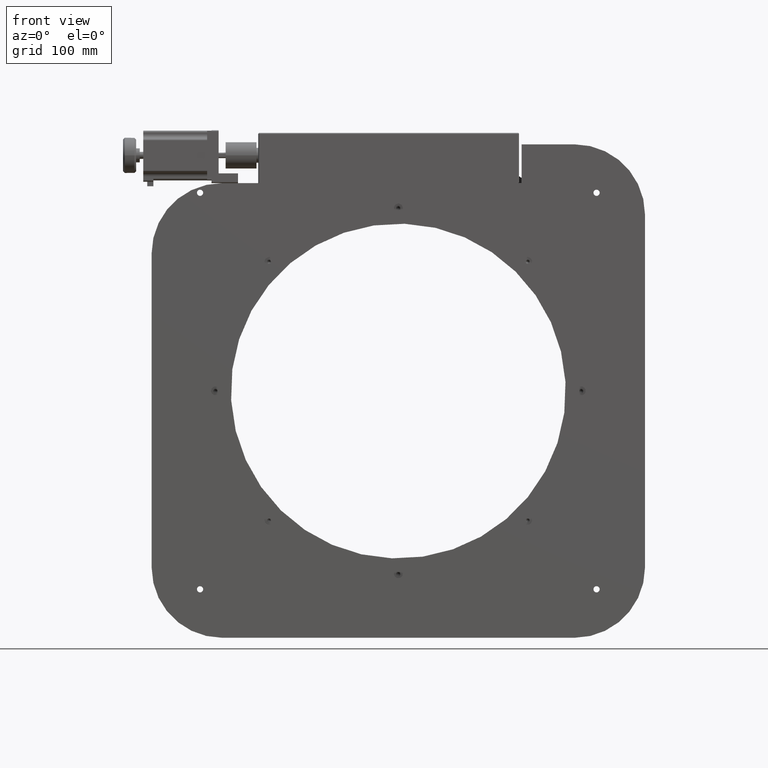
[diagram: clean part render]
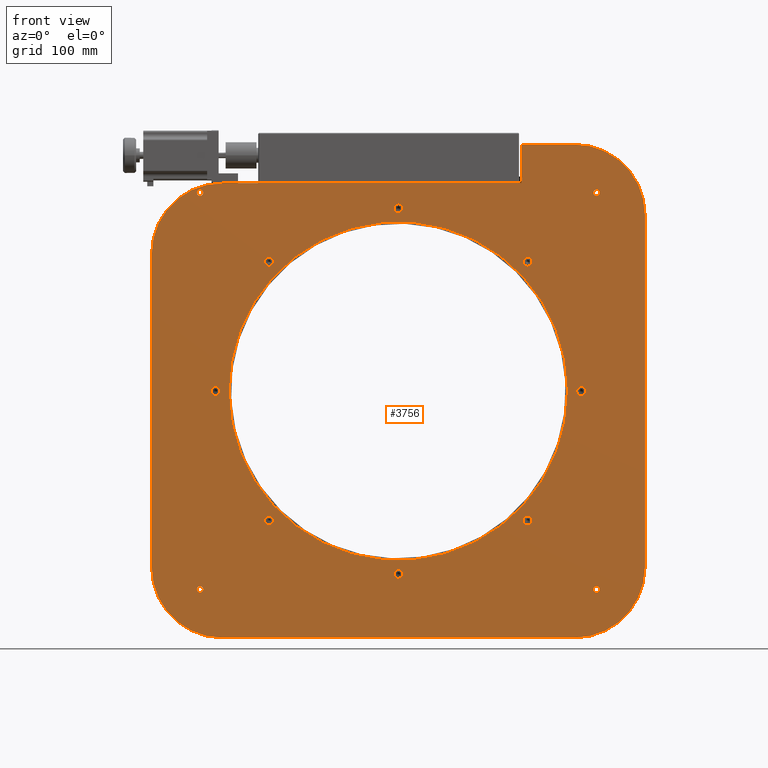
[diagram: same view with one face highlighted and labeled with its STEP entity id]
A machine part, front view. The second image highlights one B-rep face of the part: STEP entity #3756.
In plain terms, the highlighted planar face has unit normal (0, 1, -0).
Its self-contained STEP definition (entity closure, byte-faithful):
#53 = EDGE_CURVE ( 'NONE', #1139, #5576, #6133, .T. ) ;
#104 = CARTESIAN_POINT ( 'NONE',  ( -41.99999999999990100, -1.665334536937734800E-012, -492.0000000000000600 ) ) ;
#106 = EDGE_CURVE ( 'NONE', #591, #10550, #4889, .T. ) ;
#108 = EDGE_CURVE ( 'NONE', #21794, #10072, #24495, .T. ) ;
#247 = VERTEX_POINT ( 'NONE', #11172 ) ;
#288 = CIRCLE ( 'NONE', #16082, 3.500000000000003100 ) ;
#425 = LINE ( 'NONE', #27430, #15536 ) ;
#440 = DIRECTION ( 'NONE',  ( 1.000000000000000000, 0.0000000000000000000, 0.0000000000000000000 ) ) ;
#509 = AXIS2_PLACEMENT_3D ( 'NONE', #104, #18300, #18415 ) ;
#591 = VERTEX_POINT ( 'NONE', #14695 ) ;
#681 = CIRCLE ( 'NONE', #17215, 3.500000000000003100 ) ;
#723 = FACE_BOUND ( 'NONE', #33263, .T. ) ;
#772 = EDGE_LOOP ( 'NONE', ( #13662, #25233 ) ) ;
#818 = EDGE_CURVE ( 'NONE', #24034, #20675, #30837, .T. ) ;
#840 = CARTESIAN_POINT ( 'NONE',  ( 6.275342903791253600, -1.554312234475219200E-012, -438.7246570962082000 ) ) ;
#921 = VERTEX_POINT ( 'NONE', #16392 ) ;
#969 = CARTESIAN_POINT ( 'NONE',  ( 329.8239918436432300, -6.661338147750939200E-013, -193.7500000000014500 ) ) ;
#1139 = VERTEX_POINT ( 'NONE', #20578 ) ;
#1252 = DIRECTION ( 'NONE',  ( 0.0000000000000000000, -1.000000000000000000, 3.491481338843133400E-015 ) ) ;
#1292 = DIRECTION ( 'NONE',  ( -0.0000000000000000000, -1.000000000000000000, 3.491481338843133400E-015 ) ) ;
#1372 = CARTESIAN_POINT ( 'NONE',  ( 379.5000000000002300, -2.220446049250314600E-013, -67.00000000000009900 ) ) ;
#1401 = DIRECTION ( 'NONE',  ( 1.000000000000000000, 0.0000000000000000000, 0.0000000000000000000 ) ) ;
#1405 = EDGE_LOOP ( 'NONE', ( #31499, #32519 ) ) ;
#1492 = VERTEX_POINT ( 'NONE', #14072 ) ;
#1531 = AXIS2_PLACEMENT_3D ( 'NONE', #25238, #17166, #7240 ) ;
#1541 = FACE_BOUND ( 'NONE', #6338, .T. ) ;
#1778 = VECTOR ( 'NONE', #16006, 1000.000000000000000 ) ;
#1904 = CIRCLE ( 'NONE', #13433, 5.000000000000004400 ) ;
#1985 = DIRECTION ( 'NONE',  ( 1.000000000000000000, 0.0000000000000000000, 0.0000000000000000000 ) ) ;
#2089 = CARTESIAN_POINT ( 'NONE',  ( 158.0000000000001400, -1.665334536937734800E-012, -488.4999999999998900 ) ) ;
#2128 = CARTESIAN_POINT ( 'NONE',  ( 328.1739918436412000, -1.332267629550187800E-012, -390.2500000000018800 ) ) ;
#2206 = EDGE_LOOP ( 'NONE', ( #11171, #19129 ) ) ;
#2243 = ORIENTED_EDGE ( 'NONE', *, *, #8513, .F. ) ;
#2244 = CIRCLE ( 'NONE', #15232, 3.500000000000003100 ) ;
#2359 = ORIENTED_EDGE ( 'NONE', *, *, #5873, .F. ) ;
#2386 = CARTESIAN_POINT ( 'NONE',  ( 156.3500000000001600, -1.665334536937735000E-012, -488.4999999999999400 ) ) ;
#2550 = DIRECTION ( 'NONE',  ( -0.0000000000000000000, -1.000000000000000000, 3.491481338843133400E-015 ) ) ;
#2623 = VERTEX_POINT ( 'NONE', #29461 ) ;
#2709 = CIRCLE ( 'NONE', #17999, 5.000000000000004400 ) ;
#2919 = EDGE_CURVE ( 'NONE', #29123, #30815, #10592, .T. ) ;
#3056 = EDGE_LOOP ( 'NONE', ( #33772, #20904 ) ) ;
#3088 = CIRCLE ( 'NONE', #28558, 5.000000000000004400 ) ;
#3116 = DIRECTION ( 'NONE',  ( -0.0000000000000000000, -1.000000000000000000, 3.491481338843133400E-015 ) ) ;
#3295 = CARTESIAN_POINT ( 'NONE',  ( 298.0000000000000600, 0.0000000000000000000, -11.99999999999995600 ) ) ;
#3382 = CIRCLE ( 'NONE', #18876, 3.500000000000003100 ) ;
#3511 = DIRECTION ( 'NONE',  ( -1.000000000000000000, 0.0000000000000000000, 0.0000000000000000000 ) ) ;
#3532 = CARTESIAN_POINT ( 'NONE',  ( 153.0000000000001400, -2.775557561562891400E-013, -84.49999999999985800 ) ) ;
#3591 = FACE_BOUND ( 'NONE', #33131, .T. ) ;
#3630 = CARTESIAN_POINT ( 'NONE',  ( 11.27534290379125700, -1.554312234475219200E-012, -438.7246570962082000 ) ) ;
#3675 = CARTESIAN_POINT ( 'NONE',  ( -41.99999999999990100, -1.998401444325281800E-012, -572.0000000000001100 ) ) ;
#3756 = ADVANCED_FACE ( 'NONE', ( #5641, #12155, #19931, #8487, #3591, #5230, #1541, #10916, #12983, #4402, #29271, #10122, #12598, #9688, #11317, #17918, #24828, #32542, #723, #15448 ), #26592, .F. ) ;
#3827 = DIRECTION ( 'NONE',  ( -0.0000000000000000000, -1.000000000000000000, 3.491481338843133400E-015 ) ) ;
#3932 = CARTESIAN_POINT ( 'NONE',  ( 156.3500000000001600, -3.330669073875471100E-013, -95.49999999999990100 ) ) ;
#4015 = EDGE_CURVE ( 'NONE', #247, #25178, #16207, .T. ) ;
#4157 = ORIENTED_EDGE ( 'NONE', *, *, #5740, .F. ) ;
#4402 = FACE_BOUND ( 'NONE', #19519, .T. ) ;
#4516 = EDGE_CURVE ( 'NONE', #17235, #28132, #21479, .T. ) ;
#4581 = CARTESIAN_POINT ( 'NONE',  ( 158.0000000000001400, -1.665334536937734800E-012, -488.4999999999998900 ) ) ;
#4626 = EDGE_CURVE ( 'NONE', #33799, #31356, #3088, .T. ) ;
#4699 = CARTESIAN_POINT ( 'NONE',  ( 163.0000000000001400, -1.720845688168992600E-012, -499.4999999999999400 ) ) ;
#4744 = AXIS2_PLACEMENT_3D ( 'NONE', #25717, #12742, #20159 ) ;
#4757 = DIRECTION ( 'NONE',  ( 1.000000000000000000, 0.0000000000000000000, 0.0000000000000000000 ) ) ;
#4889 = CIRCLE ( 'NONE', #12726, 80.00000000000001400 ) ;
#4893 = CARTESIAN_POINT ( 'NONE',  ( 158.0000000000001400, 0.0000000000000000000, -11.99999999999995600 ) ) ;
#4939 = DIRECTION ( 'NONE',  ( -1.000000000000000000, 0.0000000000000000000, 0.0000000000000000000 ) ) ;
#5059 = DIRECTION ( 'NONE',  ( -1.000000000000000000, 0.0000000000000000000, 0.0000000000000000000 ) ) ;
#5230 = FACE_BOUND ( 'NONE', #18883, .T. ) ;
#5439 = CARTESIAN_POINT ( 'NONE',  ( -70.49999999999981500, -2.220446049250314600E-013, -67.00000000000009900 ) ) ;
#5482 = ORIENTED_EDGE ( 'NONE', *, *, #33471, .F. ) ;
#5535 = CARTESIAN_POINT ( 'NONE',  ( -10.52399184364163900, -6.661338147750939200E-013, -193.7499999999990600 ) ) ;
#5576 = VERTEX_POINT ( 'NONE', #5535 ) ;
#5591 = VERTEX_POINT ( 'NONE', #840 ) ;
#5641 = FACE_OUTER_BOUND ( 'NONE', #8210, .T. ) ;
#5740 = EDGE_CURVE ( 'NONE', #22269, #29123, #425, .T. ) ;
#5752 = VERTEX_POINT ( 'NONE', #16728 ) ;
#5844 = VERTEX_POINT ( 'NONE', #3932 ) ;
#5861 = VERTEX_POINT ( 'NONE', #9493 ) ;
#5873 = EDGE_CURVE ( 'NONE', #13276, #9891, #22494, .T. ) ;
#5904 = CIRCLE ( 'NONE', #6934, 3.500000000000003100 ) ;
#5960 = CIRCLE ( 'NONE', #17557, 1.649999999999984800 ) ;
#5969 = EDGE_CURVE ( 'NONE', #30815, #14098, #25269, .T. ) ;
#6067 = ORIENTED_EDGE ( 'NONE', *, *, #2919, .F. ) ;
#6083 = ORIENTED_EDGE ( 'NONE', *, *, #19404, .F. ) ;
#6133 = CIRCLE ( 'NONE', #7489, 1.649999999999984800 ) ;
#6254 = CARTESIAN_POINT ( 'NONE',  ( 438.0000000000001700, -3.330669073875469600E-013, -91.99999999999997200 ) ) ;
#6269 = CARTESIAN_POINT ( 'NONE',  ( 326.5239918436412300, -1.332267629550187800E-012, -390.2500000000018800 ) ) ;
#6302 = CARTESIAN_POINT ( 'NONE',  ( 158.0000000000001400, -2.775557561562891400E-013, -84.49999999999985800 ) ) ;
#6338 = EDGE_LOOP ( 'NONE', ( #16166, #24178 ) ) ;
#6344 = ORIENTED_EDGE ( 'NONE', *, *, #25932, .F. ) ;
#6578 = DIRECTION ( 'NONE',  ( -1.000000000000000000, 0.0000000000000000000, 0.0000000000000000000 ) ) ;
#6660 = EDGE_LOOP ( 'NONE', ( #9363, #17331 ) ) ;
#6734 = CARTESIAN_POINT ( 'NONE',  ( 16.27534290379228900, -4.996003610813205400E-013, -145.2753429037905200 ) ) ;
#6742 = DIRECTION ( 'NONE',  ( -0.0000000000000000000, -1.000000000000000000, 3.491481338843133400E-015 ) ) ;
#6851 = DIRECTION ( 'NONE',  ( 0.0000000000000000000, 1.000000000000000000, -3.491481338843133400E-015 ) ) ;
#6908 = CARTESIAN_POINT ( 'NONE',  ( 158.0000000000001400, -3.330669073875469600E-013, -95.49999999999985800 ) ) ;
#6934 = AXIS2_PLACEMENT_3D ( 'NONE', #13933, #6742, #30203 ) ;
#6938 = CIRCLE ( 'NONE', #18284, 5.000000000000004400 ) ;
#6983 = CARTESIAN_POINT ( 'NONE',  ( -63.49999999999994300, -1.776356839400250500E-012, -517.0000000000001100 ) ) ;
#7066 = ORIENTED_EDGE ( 'NONE', *, *, #106, .F. ) ;
#7132 = CARTESIAN_POINT ( 'NONE',  ( -12.17399184364228900, -1.332267629550187800E-012, -390.2499999999994900 ) ) ;
#7240 = DIRECTION ( 'NONE',  ( 1.000000000000000000, 0.0000000000000000000, 0.0000000000000000000 ) ) ;
#7399 = CARTESIAN_POINT ( 'NONE',  ( 153.0000000000001400, -1.720845688168992600E-012, -499.4999999999999400 ) ) ;
#7489 = AXIS2_PLACEMENT_3D ( 'NONE', #31397, #2550, #23552 ) ;
#7676 = CIRCLE ( 'NONE', #30355, 192.0000000000000600 ) ;
#7707 = EDGE_CURVE ( 'NONE', #5752, #29942, #22893, .T. ) ;
#7720 = EDGE_CURVE ( 'NONE', #10028, #11746, #27359, .T. ) ;
#7856 = AXIS2_PLACEMENT_3D ( 'NONE', #16087, #10791, #16205 ) ;
#7986 = AXIS2_PLACEMENT_3D ( 'NONE', #26942, #16454, #16357 ) ;
#8210 = EDGE_LOOP ( 'NONE', ( #7066, #13975, #26376, #6067, #4157, #6083, #19159, #5482, #20338, #12712 ) ) ;
#8227 = EDGE_CURVE ( 'NONE', #28132, #17235, #32923, .T. ) ;
#8245 = DIRECTION ( 'NONE',  ( -0.0000000000000000000, 1.000000000000000000, -3.491481338843133400E-015 ) ) ;
#8316 = EDGE_CURVE ( 'NONE', #20675, #24034, #1904, .T. ) ;
#8487 = FACE_BOUND ( 'NONE', #10036, .T. ) ;
#8513 = EDGE_CURVE ( 'NONE', #25178, #247, #18684, .T. ) ;
#8538 = DIRECTION ( 'NONE',  ( -0.0000000000000000000, -1.000000000000000000, 3.491481338843133400E-015 ) ) ;
#8585 = CARTESIAN_POINT ( 'NONE',  ( 370.5000000000002300, -9.992007221626408900E-013, -292.0000000000020500 ) ) ;
#8659 = DIRECTION ( 'NONE',  ( -1.000000000000000000, 0.0000000000000000000, 0.0000000000000000000 ) ) ;
#8705 = VERTEX_POINT ( 'NONE', #1372 ) ;
#8711 = DIRECTION ( 'NONE',  ( -0.0000000000000000000, -1.000000000000000000, 3.491481338843133400E-015 ) ) ;
#8720 = LINE ( 'NONE', #10609, #1778 ) ;
#8729 = CARTESIAN_POINT ( 'NONE',  ( -12.17399184364162300, -6.661338147750939200E-013, -193.7499999999990600 ) ) ;
#8906 = DIRECTION ( 'NONE',  ( -0.0000000000000000000, -1.000000000000000000, 3.491481338843133400E-015 ) ) ;
#8921 = AXIS2_PLACEMENT_3D ( 'NONE', #17430, #11941, #9639 ) ;
#9161 = EDGE_CURVE ( 'NONE', #29942, #5752, #2244, .T. ) ;
#9241 = DIRECTION ( 'NONE',  ( 1.000000000000000000, 0.0000000000000000000, 0.0000000000000000000 ) ) ;
#9363 = ORIENTED_EDGE ( 'NONE', *, *, #8227, .F. ) ;
#9379 = DIRECTION ( 'NONE',  ( -0.0000000000000000000, -1.000000000000000000, 3.491481338843133400E-015 ) ) ;
#9395 = EDGE_LOOP ( 'NONE', ( #9552, #2243 ) ) ;
#9403 = AXIS2_PLACEMENT_3D ( 'NONE', #6302, #24560, #16814 ) ;
#9419 = DIRECTION ( 'NONE',  ( -0.0000000000000000000, -1.000000000000000000, 3.491481338843133400E-015 ) ) ;
#9472 = EDGE_CURVE ( 'NONE', #31356, #33799, #15282, .T. ) ;
#9493 = CARTESIAN_POINT ( 'NONE',  ( 386.5000000000000600, -1.776356839400250500E-012, -517.0000000000001100 ) ) ;
#9540 = AXIS2_PLACEMENT_3D ( 'NONE', #32647, #17079, #22562 ) ;
#9552 = ORIENTED_EDGE ( 'NONE', *, *, #4015, .F. ) ;
#9590 = CARTESIAN_POINT ( 'NONE',  ( 304.7246570962100200, -4.996003610813204400E-013, -145.2753429037925100 ) ) ;
#9639 = DIRECTION ( 'NONE',  ( 1.000000000000000000, 0.0000000000000000000, 0.0000000000000000000 ) ) ;
#9688 = FACE_BOUND ( 'NONE', #772, .T. ) ;
#9713 = EDGE_CURVE ( 'NONE', #2623, #11254, #14044, .T. ) ;
#9715 = DIRECTION ( 'NONE',  ( 1.000000000000000000, 0.0000000000000000000, 0.0000000000000000000 ) ) ;
#9806 = CIRCLE ( 'NONE', #17733, 5.000000000000004400 ) ;
#9824 = VECTOR ( 'NONE', #30634, 1000.000000000000000 ) ;
#9891 = VERTEX_POINT ( 'NONE', #19595 ) ;
#9936 = CARTESIAN_POINT ( 'NONE',  ( 16.27534290379126200, -1.554312234475219400E-012, -438.7246570962082600 ) ) ;
#9951 = CARTESIAN_POINT ( 'NONE',  ( 358.0000000000001700, -3.330669073875469600E-013, -92.00000000000002800 ) ) ;
#10028 = VERTEX_POINT ( 'NONE', #28525 ) ;
#10036 = EDGE_LOOP ( 'NONE', ( #6344, #23077 ) ) ;
#10065 = DIRECTION ( 'NONE',  ( 0.0000000000000000000, -1.000000000000000000, 3.491481338843133400E-015 ) ) ;
#10072 = VERTEX_POINT ( 'NONE', #4699 ) ;
#10122 = FACE_BOUND ( 'NONE', #2206, .T. ) ;
#10152 = EDGE_CURVE ( 'NONE', #10550, #12644, #8720, .T. ) ;
#10388 = DIRECTION ( 'NONE',  ( -0.0000000000000000000, 1.000000000000000000, -3.491481338843133400E-015 ) ) ;
#10550 = VERTEX_POINT ( 'NONE', #15190 ) ;
#10592 = LINE ( 'NONE', #4893, #9824 ) ;
#10609 = CARTESIAN_POINT ( 'NONE',  ( 158.0000000000001400, -1.998401444325281800E-012, -572.0000000000001100 ) ) ;
#10678 = AXIS2_PLACEMENT_3D ( 'NONE', #7132, #14867, #20258 ) ;
#10791 = DIRECTION ( 'NONE',  ( -0.0000000000000000000, -1.000000000000000000, 3.491481338843133400E-015 ) ) ;
#10838 = DIRECTION ( 'NONE',  ( -1.000000000000000000, 0.0000000000000000000, 0.0000000000000000000 ) ) ;
#10858 = CARTESIAN_POINT ( 'NONE',  ( 158.0000000000001400, -2.775557561562891400E-013, -84.49999999999985800 ) ) ;
#10916 = FACE_BOUND ( 'NONE', #9395, .T. ) ;
#10954 = VERTEX_POINT ( 'NONE', #14937 ) ;
#10980 = DIRECTION ( 'NONE',  ( -1.000000000000000000, 0.0000000000000000000, 0.0000000000000000000 ) ) ;
#11034 = DIRECTION ( 'NONE',  ( -0.0000000000000000000, -1.000000000000000000, 3.491481338843133400E-015 ) ) ;
#11045 = CARTESIAN_POINT ( 'NONE',  ( 328.1739918436412000, -1.332267629550187800E-012, -390.2500000000018800 ) ) ;
#11171 = ORIENTED_EDGE ( 'NONE', *, *, #22633, .F. ) ;
#11172 = CARTESIAN_POINT ( 'NONE',  ( 329.8239918436411800, -1.332267629550187800E-012, -390.2500000000018800 ) ) ;
#11213 = ORIENTED_EDGE ( 'NONE', *, *, #108, .F. ) ;
#11254 = VERTEX_POINT ( 'NONE', #3532 ) ;
#11268 = CARTESIAN_POINT ( 'NONE',  ( 11.27534290379228600, -4.996003610813204400E-013, -145.2753429037904900 ) ) ;
#11293 = EDGE_CURVE ( 'NONE', #30890, #30127, #12612, .T. ) ;
#11317 = FACE_BOUND ( 'NONE', #12686, .T. ) ;
#11445 = CIRCLE ( 'NONE', #21518, 1.649999999999984800 ) ;
#11454 = VERTEX_POINT ( 'NONE', #30175 ) ;
#11629 = CARTESIAN_POINT ( 'NONE',  ( 383.0000000000000600, -1.776356839400250500E-012, -517.0000000000001100 ) ) ;
#11672 = DIRECTION ( 'NONE',  ( 1.000000000000000000, 0.0000000000000000000, 0.0000000000000000000 ) ) ;
#11695 = DIRECTION ( 'NONE',  ( -0.0000000000000000000, -1.000000000000000000, 3.491481338843133400E-015 ) ) ;
#11746 = VERTEX_POINT ( 'NONE', #5439 ) ;
#11923 = EDGE_CURVE ( 'NONE', #14891, #17359, #5960, .T. ) ;
#11941 = DIRECTION ( 'NONE',  ( -0.0000000000000000000, -1.000000000000000000, 3.491481338843133400E-015 ) ) ;
#12041 = CARTESIAN_POINT ( 'NONE',  ( 383.0000000000002300, -2.220446049250313100E-013, -67.00000000000005700 ) ) ;
#12155 = FACE_BOUND ( 'NONE', #25640, .T. ) ;
#12298 = CIRCLE ( 'NONE', #22838, 5.000000000000004400 ) ;
#12598 = FACE_BOUND ( 'NONE', #24525, .T. ) ;
#12612 = CIRCLE ( 'NONE', #14863, 1.649999999999984800 ) ;
#12644 = VERTEX_POINT ( 'NONE', #3675 ) ;
#12686 = EDGE_LOOP ( 'NONE', ( #17232, #27291 ) ) ;
#12712 = ORIENTED_EDGE ( 'NONE', *, *, #10152, .F. ) ;
#12726 = AXIS2_PLACEMENT_3D ( 'NONE', #21039, #8245, #26488 ) ;
#12742 = DIRECTION ( 'NONE',  ( -0.0000000000000000000, -1.000000000000000000, 3.491481338843133400E-015 ) ) ;
#12814 = DIRECTION ( 'NONE',  ( -1.000000000000000000, 0.0000000000000000000, 0.0000000000000000000 ) ) ;
#12983 = FACE_BOUND ( 'NONE', #13080, .T. ) ;
#13080 = EDGE_LOOP ( 'NONE', ( #11213, #30099 ) ) ;
#13112 = AXIS2_PLACEMENT_3D ( 'NONE', #29709, #25019, #6578 ) ;
#13198 = CIRCLE ( 'NONE', #8921, 1.649999999999984800 ) ;
#13262 = CARTESIAN_POINT ( 'NONE',  ( 158.0000000000001400, -1.720845688168992600E-012, -499.4999999999999400 ) ) ;
#13276 = VERTEX_POINT ( 'NONE', #17508 ) ;
#13433 = AXIS2_PLACEMENT_3D ( 'NONE', #9590, #17504, #20344 ) ;
#13534 = CARTESIAN_POINT ( 'NONE',  ( 383.0000000000000600, -1.776356839400250500E-012, -517.0000000000001100 ) ) ;
#13652 = DIRECTION ( 'NONE',  ( -0.0000000000000000000, -1.000000000000000000, 3.491481338843133400E-015 ) ) ;
#13656 = VERTEX_POINT ( 'NONE', #6734 ) ;
#13662 = ORIENTED_EDGE ( 'NONE', *, *, #8316, .F. ) ;
#13731 = DIRECTION ( 'NONE',  ( -1.000000000000000000, 0.0000000000000000000, 0.0000000000000000000 ) ) ;
#13933 = CARTESIAN_POINT ( 'NONE',  ( 383.0000000000002300, -2.220446049250313100E-013, -67.00000000000005700 ) ) ;
#13956 = CIRCLE ( 'NONE', #13112, 5.000000000000004400 ) ;
#13975 = ORIENTED_EDGE ( 'NONE', *, *, #18251, .F. ) ;
#14044 = CIRCLE ( 'NONE', #18110, 5.000000000000004400 ) ;
#14072 = CARTESIAN_POINT ( 'NONE',  ( -121.9999999999999400, -1.665334536937734800E-012, -492.0000000000000600 ) ) ;
#14090 = DIRECTION ( 'NONE',  ( -0.0000000000000000000, 3.491481338843133400E-015, 1.000000000000000000 ) ) ;
#14098 = VERTEX_POINT ( 'NONE', #6254 ) ;
#14136 = DIRECTION ( 'NONE',  ( 1.000000000000000000, 0.0000000000000000000, 0.0000000000000000000 ) ) ;
#14203 = DIRECTION ( 'NONE',  ( -1.000000000000000000, 0.0000000000000000000, 0.0000000000000000000 ) ) ;
#14264 = CIRCLE ( 'NONE', #28941, 5.000000000000004400 ) ;
#14463 = AXIS2_PLACEMENT_3D ( 'NONE', #13262, #28873, #10838 ) ;
#14487 = CARTESIAN_POINT ( 'NONE',  ( -41.99999999999984400, -4.440892098500626200E-013, -136.0000000000000000 ) ) ;
#14651 = DIRECTION ( 'NONE',  ( -0.0000000000000000000, -1.000000000000000000, 3.491481338843133400E-015 ) ) ;
#14668 = EDGE_CURVE ( 'NONE', #921, #28112, #23546, .T. ) ;
#14672 = DIRECTION ( 'NONE',  ( 1.000000000000000000, 0.0000000000000000000, 0.0000000000000000000 ) ) ;
#14678 = CARTESIAN_POINT ( 'NONE',  ( 299.7246570962100200, -4.996003610813204400E-013, -145.2753429037925100 ) ) ;
#14695 = CARTESIAN_POINT ( 'NONE',  ( 438.0000000000001700, -1.665334536937734800E-012, -492.0000000000000600 ) ) ;
#14863 = AXIS2_PLACEMENT_3D ( 'NONE', #22140, #8538, #14136 ) ;
#14867 = DIRECTION ( 'NONE',  ( -0.0000000000000000000, -1.000000000000000000, 3.491481338843133400E-015 ) ) ;
#14891 = VERTEX_POINT ( 'NONE', #17969 ) ;
#14909 = VECTOR ( 'NONE', #15956, 1000.000000000000000 ) ;
#14937 = CARTESIAN_POINT ( 'NONE',  ( 6.275342903792280300, -4.996003610813204400E-013, -145.2753429037904900 ) ) ;
#14971 = CARTESIAN_POINT ( 'NONE',  ( -121.9999999999998900, -4.440892098500626200E-013, -136.0000000000000000 ) ) ;
#14978 = CARTESIAN_POINT ( 'NONE',  ( 11.27534290379228600, -4.996003610813204400E-013, -145.2753429037904900 ) ) ;
#15190 = CARTESIAN_POINT ( 'NONE',  ( 358.0000000000001100, -1.998401444325281800E-012, -572.0000000000001100 ) ) ;
#15232 = AXIS2_PLACEMENT_3D ( 'NONE', #16769, #21903, #21664 ) ;
#15282 = CIRCLE ( 'NONE', #4744, 5.000000000000004400 ) ;
#15448 = FACE_BOUND ( 'NONE', #21387, .T. ) ;
#15536 = VECTOR ( 'NONE', #14090, 1000.000000000000000 ) ;
#15806 = CARTESIAN_POINT ( 'NONE',  ( 158.0000000000001400, -2.220446049250313100E-013, -55.99999999999999300 ) ) ;
#15956 = DIRECTION ( 'NONE',  ( -0.0000000000000000000, 3.491481338843133400E-015, 1.000000000000000000 ) ) ;
#15992 = EDGE_CURVE ( 'NONE', #25766, #29574, #29508, .T. ) ;
#16006 = DIRECTION ( 'NONE',  ( -1.000000000000000000, -0.0000000000000000000, -0.0000000000000000000 ) ) ;
#16082 = AXIS2_PLACEMENT_3D ( 'NONE', #12041, #27781, #14672 ) ;
#16087 = CARTESIAN_POINT ( 'NONE',  ( -66.99999999999981500, -2.220446049250313100E-013, -67.00000000000005700 ) ) ;
#16166 = ORIENTED_EDGE ( 'NONE', *, *, #11293, .F. ) ;
#16205 = DIRECTION ( 'NONE',  ( 1.000000000000000000, 0.0000000000000000000, 0.0000000000000000000 ) ) ;
#16207 = CIRCLE ( 'NONE', #19417, 1.649999999999984800 ) ;
#16295 = CARTESIAN_POINT ( 'NONE',  ( 309.7246570962100800, -4.996003610813204400E-013, -145.2753429037925100 ) ) ;
#16307 = DIRECTION ( 'NONE',  ( 1.000000000000000000, 0.0000000000000000000, 0.0000000000000000000 ) ) ;
#16353 = DIRECTION ( 'NONE',  ( 1.000000000000000000, 0.0000000000000000000, 0.0000000000000000000 ) ) ;
#16357 = DIRECTION ( 'NONE',  ( 1.000000000000000000, 0.0000000000000000000, 0.0000000000000000000 ) ) ;
#16392 = CARTESIAN_POINT ( 'NONE',  ( 309.7246570962070100, -1.554312234475219200E-012, -438.7246570962103100 ) ) ;
#16454 = DIRECTION ( 'NONE',  ( 0.0000000000000000000, 1.000000000000000000, -3.491481338843133400E-015 ) ) ;
#16538 = ORIENTED_EDGE ( 'NONE', *, *, #18911, .F. ) ;
#16682 = AXIS2_PLACEMENT_3D ( 'NONE', #11268, #1252, #8659 ) ;
#16728 = CARTESIAN_POINT ( 'NONE',  ( -70.49999999999995700, -1.776356839400250500E-012, -517.0000000000001100 ) ) ;
#16745 = EDGE_CURVE ( 'NONE', #10072, #21794, #9806, .T. ) ;
#16752 = DIRECTION ( 'NONE',  ( 1.000000000000000000, 0.0000000000000000000, 0.0000000000000000000 ) ) ;
#16769 = CARTESIAN_POINT ( 'NONE',  ( -66.99999999999994300, -1.776356839400250500E-012, -517.0000000000001100 ) ) ;
#16814 = DIRECTION ( 'NONE',  ( -1.000000000000000000, 0.0000000000000000000, 0.0000000000000000000 ) ) ;
#16819 = CARTESIAN_POINT ( 'NONE',  ( 159.6500000000001200, -3.330669073875469600E-013, -95.49999999999985800 ) ) ;
#17079 = DIRECTION ( 'NONE',  ( 0.0000000000000000000, -1.000000000000000000, 3.491481338843133400E-015 ) ) ;
#17166 = DIRECTION ( 'NONE',  ( -0.0000000000000000000, -1.000000000000000000, 3.491481338843133400E-015 ) ) ;
#17215 = AXIS2_PLACEMENT_3D ( 'NONE', #20138, #22765, #1985 ) ;
#17232 = ORIENTED_EDGE ( 'NONE', *, *, #4626, .F. ) ;
#17235 = VERTEX_POINT ( 'NONE', #2386 ) ;
#17298 = DIRECTION ( 'NONE',  ( -1.000000000000000000, 0.0000000000000000000, 0.0000000000000000000 ) ) ;
#17325 = ORIENTED_EDGE ( 'NONE', *, *, #24424, .F. ) ;
#17331 = ORIENTED_EDGE ( 'NONE', *, *, #4516, .F. ) ;
#17359 = VERTEX_POINT ( 'NONE', #23824 ) ;
#17374 = CIRCLE ( 'NONE', #16682, 5.000000000000004400 ) ;
#17428 = AXIS2_PLACEMENT_3D ( 'NONE', #6908, #11695, #25015 ) ;
#17430 = CARTESIAN_POINT ( 'NONE',  ( 158.0000000000001400, -3.330669073875469600E-013, -95.49999999999985800 ) ) ;
#17504 = DIRECTION ( 'NONE',  ( -0.0000000000000000000, -1.000000000000000000, 3.491481338843133400E-015 ) ) ;
#17508 = CARTESIAN_POINT ( 'NONE',  ( -33.99999999999989300, -9.992007221626410900E-013, -291.9999999999999400 ) ) ;
#17557 = AXIS2_PLACEMENT_3D ( 'NONE', #22217, #8711, #1401 ) ;
#17642 = EDGE_CURVE ( 'NONE', #28112, #921, #2709, .T. ) ;
#17733 = AXIS2_PLACEMENT_3D ( 'NONE', #29170, #11034, #31583 ) ;
#17918 = FACE_BOUND ( 'NONE', #23031, .T. ) ;
#17969 = CARTESIAN_POINT ( 'NONE',  ( -13.82399184364227600, -1.332267629550188100E-012, -390.2499999999995500 ) ) ;
#17999 = AXIS2_PLACEMENT_3D ( 'NONE', #32870, #9419, #17298 ) ;
#18048 = CIRCLE ( 'NONE', #10678, 1.649999999999984800 ) ;
#18106 = AXIS2_PLACEMENT_3D ( 'NONE', #2089, #14651, #25248 ) ;
#18110 = AXIS2_PLACEMENT_3D ( 'NONE', #10858, #24241, #13731 ) ;
#18166 = ORIENTED_EDGE ( 'NONE', *, *, #7720, .F. ) ;
#18251 = EDGE_CURVE ( 'NONE', #14098, #591, #27816, .T. ) ;
#18284 = AXIS2_PLACEMENT_3D ( 'NONE', #14978, #10065, #12814 ) ;
#18300 = DIRECTION ( 'NONE',  ( -0.0000000000000000000, 1.000000000000000000, -3.491481338843133400E-015 ) ) ;
#18306 = ORIENTED_EDGE ( 'NONE', *, *, #27113, .F. ) ;
#18415 = DIRECTION ( 'NONE',  ( -1.000000000000000000, 0.0000000000000000000, 0.0000000000000000000 ) ) ;
#18420 = EDGE_CURVE ( 'NONE', #24822, #5591, #12298, .T. ) ;
#18468 = EDGE_CURVE ( 'NONE', #5576, #1139, #11445, .T. ) ;
#18480 = CIRCLE ( 'NONE', #26486, 3.500000000000003100 ) ;
#18684 = CIRCLE ( 'NONE', #19797, 1.649999999999984800 ) ;
#18697 = ORIENTED_EDGE ( 'NONE', *, *, #20621, .F. ) ;
#18810 = CARTESIAN_POINT ( 'NONE',  ( 304.7246570962100200, -4.996003610813204400E-013, -145.2753429037925100 ) ) ;
#18876 = AXIS2_PLACEMENT_3D ( 'NONE', #11629, #8906, #9241 ) ;
#18883 = EDGE_LOOP ( 'NONE', ( #18697, #20572 ) ) ;
#18911 = EDGE_CURVE ( 'NONE', #5591, #24822, #14264, .T. ) ;
#19106 = EDGE_CURVE ( 'NONE', #8705, #19855, #288, .T. ) ;
#19129 = ORIENTED_EDGE ( 'NONE', *, *, #28252, .F. ) ;
#19159 = ORIENTED_EDGE ( 'NONE', *, *, #21128, .F. ) ;
#19377 = AXIS2_PLACEMENT_3D ( 'NONE', #4581, #25326, #9715 ) ;
#19404 = EDGE_CURVE ( 'NONE', #11454, #22269, #30061, .T. ) ;
#19417 = AXIS2_PLACEMENT_3D ( 'NONE', #2128, #23257, #4757 ) ;
#19519 = EDGE_LOOP ( 'NONE', ( #16538, #30715 ) ) ;
#19595 = CARTESIAN_POINT ( 'NONE',  ( 350.0000000000002300, -9.992007221626408900E-013, -291.9999999999998900 ) ) ;
#19684 = AXIS2_PLACEMENT_3D ( 'NONE', #14487, #6851, #32683 ) ;
#19797 = AXIS2_PLACEMENT_3D ( 'NONE', #11045, #21594, #16353 ) ;
#19855 = VERTEX_POINT ( 'NONE', #26680 ) ;
#19931 = FACE_BOUND ( 'NONE', #6660, .T. ) ;
#20001 = EDGE_CURVE ( 'NONE', #19855, #8705, #5904, .T. ) ;
#20138 = CARTESIAN_POINT ( 'NONE',  ( -66.99999999999981500, -2.220446049250313100E-013, -67.00000000000005700 ) ) ;
#20159 = DIRECTION ( 'NONE',  ( -1.000000000000000000, 0.0000000000000000000, 0.0000000000000000000 ) ) ;
#20258 = DIRECTION ( 'NONE',  ( 1.000000000000000000, 0.0000000000000000000, 0.0000000000000000000 ) ) ;
#20338 = ORIENTED_EDGE ( 'NONE', *, *, #31679, .F. ) ;
#20344 = DIRECTION ( 'NONE',  ( -1.000000000000000000, 0.0000000000000000000, 0.0000000000000000000 ) ) ;
#20550 = DIRECTION ( 'NONE',  ( 0.0000000000000000000, -1.000000000000000000, 3.491481338843133400E-015 ) ) ;
#20572 = ORIENTED_EDGE ( 'NONE', *, *, #24302, .F. ) ;
#20578 = CARTESIAN_POINT ( 'NONE',  ( -13.82399184364160900, -6.661338147750940300E-013, -193.7499999999990900 ) ) ;
#20621 = EDGE_CURVE ( 'NONE', #24630, #5844, #13198, .T. ) ;
#20675 = VERTEX_POINT ( 'NONE', #14678 ) ;
#20708 = VECTOR ( 'NONE', #31848, 1000.000000000000000 ) ;
#20904 = ORIENTED_EDGE ( 'NONE', *, *, #7707, .F. ) ;
#21039 = CARTESIAN_POINT ( 'NONE',  ( 358.0000000000001100, -1.665334536937734800E-012, -492.0000000000000600 ) ) ;
#21128 = EDGE_CURVE ( 'NONE', #26531, #11454, #21303, .T. ) ;
#21136 = CARTESIAN_POINT ( 'NONE',  ( 379.5000000000000600, -1.776356839400250500E-012, -517.0000000000001100 ) ) ;
#21303 = CIRCLE ( 'NONE', #19684, 80.00000000000000000 ) ;
#21311 = CIRCLE ( 'NONE', #509, 79.99999999999998600 ) ;
#21387 = EDGE_LOOP ( 'NONE', ( #24087, #23011 ) ) ;
#21415 = ORIENTED_EDGE ( 'NONE', *, *, #18468, .F. ) ;
#21473 = DIRECTION ( 'NONE',  ( -1.000000000000000000, 0.0000000000000000000, 0.0000000000000000000 ) ) ;
#21479 = CIRCLE ( 'NONE', #18106, 1.649999999999984800 ) ;
#21518 = AXIS2_PLACEMENT_3D ( 'NONE', #8729, #29363, #16752 ) ;
#21594 = DIRECTION ( 'NONE',  ( -0.0000000000000000000, -1.000000000000000000, 3.491481338843133400E-015 ) ) ;
#21664 = DIRECTION ( 'NONE',  ( 1.000000000000000000, 0.0000000000000000000, 0.0000000000000000000 ) ) ;
#21794 = VERTEX_POINT ( 'NONE', #7399 ) ;
#21903 = DIRECTION ( 'NONE',  ( -0.0000000000000000000, -1.000000000000000000, 3.491481338843133400E-015 ) ) ;
#22140 = CARTESIAN_POINT ( 'NONE',  ( 328.1739918436432500, -6.661338147750939200E-013, -193.7500000000014500 ) ) ;
#22162 = EDGE_CURVE ( 'NONE', #9891, #13276, #7676, .T. ) ;
#22200 = CARTESIAN_POINT ( 'NONE',  ( 438.0000000000001700, -9.992007221626408900E-013, -291.9999999999998900 ) ) ;
#22217 = CARTESIAN_POINT ( 'NONE',  ( -12.17399184364228900, -1.332267629550187800E-012, -390.2499999999994900 ) ) ;
#22269 = VERTEX_POINT ( 'NONE', #30464 ) ;
#22494 = CIRCLE ( 'NONE', #1531, 192.0000000000000600 ) ;
#22562 = DIRECTION ( 'NONE',  ( -1.000000000000000000, 0.0000000000000000000, 0.0000000000000000000 ) ) ;
#22633 = EDGE_CURVE ( 'NONE', #10954, #13656, #17374, .T. ) ;
#22765 = DIRECTION ( 'NONE',  ( -0.0000000000000000000, -1.000000000000000000, 3.491481338843133400E-015 ) ) ;
#22838 = AXIS2_PLACEMENT_3D ( 'NONE', #30909, #20550, #4939 ) ;
#22893 = CIRCLE ( 'NONE', #24226, 3.500000000000003100 ) ;
#23011 = ORIENTED_EDGE ( 'NONE', *, *, #19106, .F. ) ;
#23031 = EDGE_LOOP ( 'NONE', ( #23212, #27891 ) ) ;
#23077 = ORIENTED_EDGE ( 'NONE', *, *, #11923, .F. ) ;
#23119 = AXIS2_PLACEMENT_3D ( 'NONE', #24988, #9379, #33050 ) ;
#23212 = ORIENTED_EDGE ( 'NONE', *, *, #17642, .F. ) ;
#23257 = DIRECTION ( 'NONE',  ( -0.0000000000000000000, -1.000000000000000000, 3.491481338843133400E-015 ) ) ;
#23508 = EDGE_LOOP ( 'NONE', ( #18166, #17325 ) ) ;
#23546 = CIRCLE ( 'NONE', #24337, 5.000000000000004400 ) ;
#23552 = DIRECTION ( 'NONE',  ( 1.000000000000000000, 0.0000000000000000000, 0.0000000000000000000 ) ) ;
#23664 = CARTESIAN_POINT ( 'NONE',  ( 365.5000000000002300, -9.992007221626408900E-013, -292.0000000000020500 ) ) ;
#23824 = CARTESIAN_POINT ( 'NONE',  ( -10.52399184364230500, -1.332267629550187800E-012, -390.2499999999994900 ) ) ;
#24034 = VERTEX_POINT ( 'NONE', #16295 ) ;
#24087 = ORIENTED_EDGE ( 'NONE', *, *, #20001, .F. ) ;
#24178 = ORIENTED_EDGE ( 'NONE', *, *, #24700, .F. ) ;
#24181 = DIRECTION ( 'NONE',  ( -0.0000000000000000000, -1.000000000000000000, 3.491481338843133400E-015 ) ) ;
#24225 = CARTESIAN_POINT ( 'NONE',  ( -54.49999999999990800, -9.992007221626408900E-013, -291.9999999999991500 ) ) ;
#24226 = AXIS2_PLACEMENT_3D ( 'NONE', #26321, #24181, #440 ) ;
#24241 = DIRECTION ( 'NONE',  ( -0.0000000000000000000, -1.000000000000000000, 3.491481338843133400E-015 ) ) ;
#24301 = ORIENTED_EDGE ( 'NONE', *, *, #27376, .F. ) ;
#24302 = EDGE_CURVE ( 'NONE', #5844, #24630, #31693, .T. ) ;
#24337 = AXIS2_PLACEMENT_3D ( 'NONE', #27084, #3827, #14203 ) ;
#24424 = EDGE_CURVE ( 'NONE', #11746, #10028, #681, .T. ) ;
#24488 = AXIS2_PLACEMENT_3D ( 'NONE', #9951, #10388, #5059 ) ;
#24495 = CIRCLE ( 'NONE', #14463, 5.000000000000004400 ) ;
#24525 = EDGE_LOOP ( 'NONE', ( #33093, #26007 ) ) ;
#24560 = DIRECTION ( 'NONE',  ( -0.0000000000000000000, -1.000000000000000000, 3.491481338843133400E-015 ) ) ;
#24630 = VERTEX_POINT ( 'NONE', #16819 ) ;
#24700 = EDGE_CURVE ( 'NONE', #30127, #30890, #31279, .T. ) ;
#24822 = VERTEX_POINT ( 'NONE', #9936 ) ;
#24828 = FACE_BOUND ( 'NONE', #3056, .T. ) ;
#24988 = CARTESIAN_POINT ( 'NONE',  ( 328.1739918436432500, -6.661338147750939200E-013, -193.7500000000014500 ) ) ;
#25015 = DIRECTION ( 'NONE',  ( 1.000000000000000000, 0.0000000000000000000, 0.0000000000000000000 ) ) ;
#25019 = DIRECTION ( 'NONE',  ( 0.0000000000000000000, -1.000000000000000000, 3.491481338843133400E-015 ) ) ;
#25178 = VERTEX_POINT ( 'NONE', #6269 ) ;
#25233 = ORIENTED_EDGE ( 'NONE', *, *, #818, .F. ) ;
#25238 = CARTESIAN_POINT ( 'NONE',  ( 158.0000000000001400, -9.992007221626408900E-013, -291.9999999999998900 ) ) ;
#25248 = DIRECTION ( 'NONE',  ( 1.000000000000000000, 0.0000000000000000000, 0.0000000000000000000 ) ) ;
#25269 = CIRCLE ( 'NONE', #24488, 80.00000000000001400 ) ;
#25326 = DIRECTION ( 'NONE',  ( -0.0000000000000000000, -1.000000000000000000, 3.491481338843133400E-015 ) ) ;
#25432 = DIRECTION ( 'NONE',  ( 0.0000000000000000000, -3.491481338843133400E-015, -1.000000000000000000 ) ) ;
#25584 = CARTESIAN_POINT ( 'NONE',  ( 360.5000000000002300, -9.992007221626408900E-013, -292.0000000000020500 ) ) ;
#25640 = EDGE_LOOP ( 'NONE', ( #29715, #2359 ) ) ;
#25717 = CARTESIAN_POINT ( 'NONE',  ( 365.5000000000002300, -9.992007221626408900E-013, -292.0000000000020500 ) ) ;
#25766 = VERTEX_POINT ( 'NONE', #30037 ) ;
#25785 = EDGE_CURVE ( 'NONE', #29574, #25766, #13956, .T. ) ;
#25932 = EDGE_CURVE ( 'NONE', #17359, #14891, #18048, .T. ) ;
#26007 = ORIENTED_EDGE ( 'NONE', *, *, #9713, .F. ) ;
#26215 = CARTESIAN_POINT ( 'NONE',  ( 326.5239918436432700, -6.661338147750940300E-013, -193.7500000000014800 ) ) ;
#26252 = EDGE_CURVE ( 'NONE', #11254, #2623, #29192, .T. ) ;
#26289 = CARTESIAN_POINT ( 'NONE',  ( -121.9999999999999400, -9.992007221626408900E-013, -291.9999999999998900 ) ) ;
#26321 = CARTESIAN_POINT ( 'NONE',  ( -66.99999999999994300, -1.776356839400250500E-012, -517.0000000000001100 ) ) ;
#26376 = ORIENTED_EDGE ( 'NONE', *, *, #5969, .F. ) ;
#26486 = AXIS2_PLACEMENT_3D ( 'NONE', #13534, #13652, #16307 ) ;
#26488 = DIRECTION ( 'NONE',  ( -1.000000000000000000, 0.0000000000000000000, 0.0000000000000000000 ) ) ;
#26531 = VERTEX_POINT ( 'NONE', #14971 ) ;
#26592 = PLANE ( 'NONE',  #7986 ) ;
#26597 = VECTOR ( 'NONE', #25432, 1000.000000000000000 ) ;
#26680 = CARTESIAN_POINT ( 'NONE',  ( 386.5000000000002300, -2.220446049250313100E-013, -67.00000000000005700 ) ) ;
#26724 = VERTEX_POINT ( 'NONE', #21136 ) ;
#26942 = CARTESIAN_POINT ( 'NONE',  ( 158.0000000000001400, -9.992007221626408900E-013, -291.9999999999998900 ) ) ;
#27084 = CARTESIAN_POINT ( 'NONE',  ( 304.7246570962070100, -1.554312234475219200E-012, -438.7246570962103100 ) ) ;
#27096 = CARTESIAN_POINT ( 'NONE',  ( 358.0000000000001700, 0.0000000000000000000, -11.99999999999995600 ) ) ;
#27113 = EDGE_CURVE ( 'NONE', #26724, #5861, #3382, .T. ) ;
#27291 = ORIENTED_EDGE ( 'NONE', *, *, #9472, .F. ) ;
#27359 = CIRCLE ( 'NONE', #7856, 3.500000000000003100 ) ;
#27376 = EDGE_CURVE ( 'NONE', #5861, #26724, #18480, .T. ) ;
#27430 = CARTESIAN_POINT ( 'NONE',  ( 298.0000000000000600, -9.992007221626408900E-013, -291.9999999999998900 ) ) ;
#27575 = ORIENTED_EDGE ( 'NONE', *, *, #53, .F. ) ;
#27781 = DIRECTION ( 'NONE',  ( -0.0000000000000000000, -1.000000000000000000, 3.491481338843133400E-015 ) ) ;
#27816 = LINE ( 'NONE', #22200, #26597 ) ;
#27891 = ORIENTED_EDGE ( 'NONE', *, *, #14668, .F. ) ;
#28112 = VERTEX_POINT ( 'NONE', #30350 ) ;
#28132 = VERTEX_POINT ( 'NONE', #30140 ) ;
#28252 = EDGE_CURVE ( 'NONE', #13656, #10954, #6938, .T. ) ;
#28525 = CARTESIAN_POINT ( 'NONE',  ( -63.49999999999980800, -2.220446049250313100E-013, -67.00000000000005700 ) ) ;
#28558 = AXIS2_PLACEMENT_3D ( 'NONE', #23664, #3116, #21473 ) ;
#28768 = LINE ( 'NONE', #26289, #14909 ) ;
#28873 = DIRECTION ( 'NONE',  ( -0.0000000000000000000, -1.000000000000000000, 3.491481338843133400E-015 ) ) ;
#28941 = AXIS2_PLACEMENT_3D ( 'NONE', #3630, #32100, #3511 ) ;
#29020 = DIRECTION ( 'NONE',  ( -0.0000000000000000000, -1.000000000000000000, 3.491481338843133400E-015 ) ) ;
#29123 = VERTEX_POINT ( 'NONE', #3295 ) ;
#29170 = CARTESIAN_POINT ( 'NONE',  ( 158.0000000000001400, -1.720845688168992600E-012, -499.4999999999999400 ) ) ;
#29192 = CIRCLE ( 'NONE', #9403, 5.000000000000004400 ) ;
#29271 = FACE_BOUND ( 'NONE', #1405, .T. ) ;
#29363 = DIRECTION ( 'NONE',  ( -0.0000000000000000000, -1.000000000000000000, 3.491481338843133400E-015 ) ) ;
#29461 = CARTESIAN_POINT ( 'NONE',  ( 163.0000000000001400, -2.775557561562891400E-013, -84.49999999999985800 ) ) ;
#29508 = CIRCLE ( 'NONE', #9540, 5.000000000000004400 ) ;
#29574 = VERTEX_POINT ( 'NONE', #24225 ) ;
#29709 = CARTESIAN_POINT ( 'NONE',  ( -49.49999999999990800, -9.992007221626408900E-013, -291.9999999999991500 ) ) ;
#29715 = ORIENTED_EDGE ( 'NONE', *, *, #22162, .F. ) ;
#29942 = VERTEX_POINT ( 'NONE', #6983 ) ;
#30037 = CARTESIAN_POINT ( 'NONE',  ( -44.49999999999990100, -9.992007221626408900E-013, -291.9999999999991500 ) ) ;
#30061 = LINE ( 'NONE', #15806, #20708 ) ;
#30099 = ORIENTED_EDGE ( 'NONE', *, *, #16745, .F. ) ;
#30127 = VERTEX_POINT ( 'NONE', #26215 ) ;
#30140 = CARTESIAN_POINT ( 'NONE',  ( 159.6500000000001200, -1.665334536937734800E-012, -488.4999999999998900 ) ) ;
#30175 = CARTESIAN_POINT ( 'NONE',  ( -41.99999999999984400, -2.220446049250313100E-013, -55.99999999999999300 ) ) ;
#30203 = DIRECTION ( 'NONE',  ( 1.000000000000000000, 0.0000000000000000000, 0.0000000000000000000 ) ) ;
#30335 = CARTESIAN_POINT ( 'NONE',  ( 158.0000000000001400, -9.992007221626408900E-013, -291.9999999999998900 ) ) ;
#30350 = CARTESIAN_POINT ( 'NONE',  ( 299.7246570962070100, -1.554312234475219200E-012, -438.7246570962103100 ) ) ;
#30355 = AXIS2_PLACEMENT_3D ( 'NONE', #30335, #1292, #11672 ) ;
#30464 = CARTESIAN_POINT ( 'NONE',  ( 298.0000000000000600, -2.220446049250313100E-013, -55.99999999999999300 ) ) ;
#30634 = DIRECTION ( 'NONE',  ( 1.000000000000000000, 0.0000000000000000000, 0.0000000000000000000 ) ) ;
#30715 = ORIENTED_EDGE ( 'NONE', *, *, #18420, .F. ) ;
#30815 = VERTEX_POINT ( 'NONE', #27096 ) ;
#30837 = CIRCLE ( 'NONE', #31639, 5.000000000000004400 ) ;
#30890 = VERTEX_POINT ( 'NONE', #969 ) ;
#30909 = CARTESIAN_POINT ( 'NONE',  ( 11.27534290379125700, -1.554312234475219200E-012, -438.7246570962082000 ) ) ;
#31279 = CIRCLE ( 'NONE', #23119, 1.649999999999984800 ) ;
#31356 = VERTEX_POINT ( 'NONE', #8585 ) ;
#31397 = CARTESIAN_POINT ( 'NONE',  ( -12.17399184364162300, -6.661338147750939200E-013, -193.7499999999990600 ) ) ;
#31499 = ORIENTED_EDGE ( 'NONE', *, *, #25785, .F. ) ;
#31583 = DIRECTION ( 'NONE',  ( -1.000000000000000000, 0.0000000000000000000, 0.0000000000000000000 ) ) ;
#31639 = AXIS2_PLACEMENT_3D ( 'NONE', #18810, #29020, #10980 ) ;
#31679 = EDGE_CURVE ( 'NONE', #12644, #1492, #21311, .T. ) ;
#31693 = CIRCLE ( 'NONE', #17428, 1.649999999999984800 ) ;
#31848 = DIRECTION ( 'NONE',  ( 1.000000000000000000, 0.0000000000000000000, 0.0000000000000000000 ) ) ;
#32100 = DIRECTION ( 'NONE',  ( 0.0000000000000000000, -1.000000000000000000, 3.491481338843133400E-015 ) ) ;
#32519 = ORIENTED_EDGE ( 'NONE', *, *, #15992, .F. ) ;
#32542 = FACE_BOUND ( 'NONE', #23508, .T. ) ;
#32647 = CARTESIAN_POINT ( 'NONE',  ( -49.49999999999990800, -9.992007221626408900E-013, -291.9999999999991500 ) ) ;
#32683 = DIRECTION ( 'NONE',  ( 1.000000000000000000, 0.0000000000000000000, 0.0000000000000000000 ) ) ;
#32870 = CARTESIAN_POINT ( 'NONE',  ( 304.7246570962070100, -1.554312234475219200E-012, -438.7246570962103100 ) ) ;
#32923 = CIRCLE ( 'NONE', #19377, 1.649999999999984800 ) ;
#33050 = DIRECTION ( 'NONE',  ( 1.000000000000000000, 0.0000000000000000000, 0.0000000000000000000 ) ) ;
#33093 = ORIENTED_EDGE ( 'NONE', *, *, #26252, .F. ) ;
#33131 = EDGE_LOOP ( 'NONE', ( #21415, #27575 ) ) ;
#33263 = EDGE_LOOP ( 'NONE', ( #24301, #18306 ) ) ;
#33471 = EDGE_CURVE ( 'NONE', #1492, #26531, #28768, .T. ) ;
#33772 = ORIENTED_EDGE ( 'NONE', *, *, #9161, .F. ) ;
#33799 = VERTEX_POINT ( 'NONE', #25584 ) ;